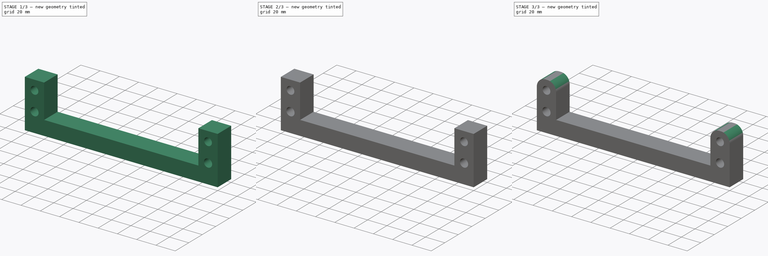
[diagram: build sequence overview — one tinted view per stage of 3, left to right]
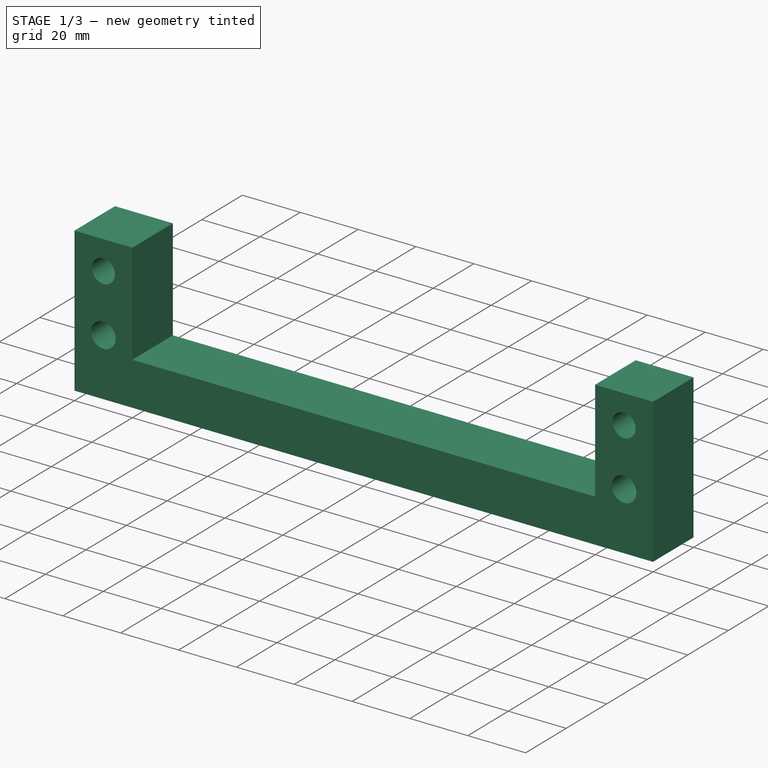
[diagram: stage 1 of 3 — iso view after this stage's code; geometry added in this stage tinted green]
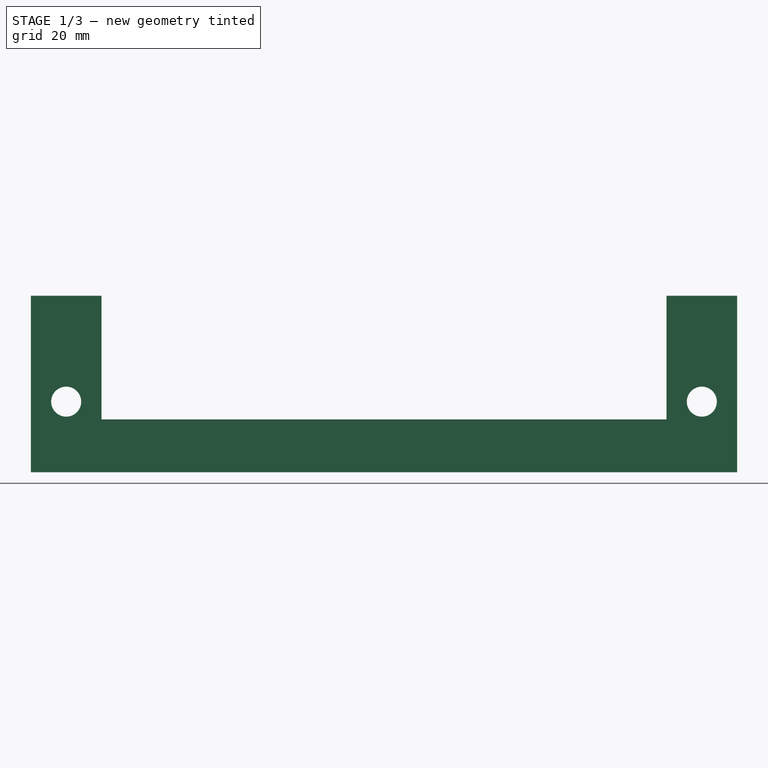
[diagram: stage 1 of 3 — front view after this stage's code; geometry added in this stage tinted green]
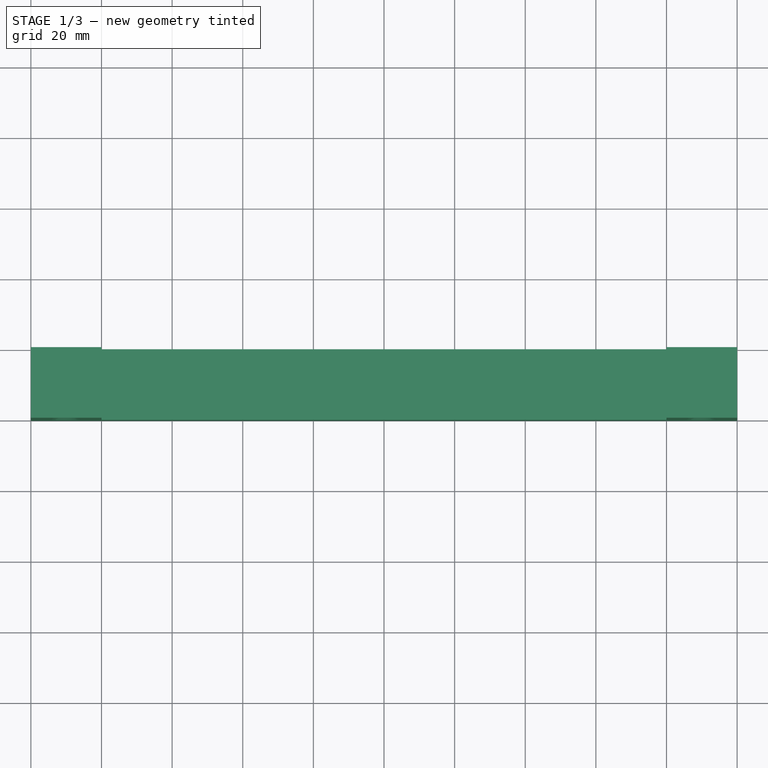
[diagram: stage 1 of 3 — top view after this stage's code; geometry added in this stage tinted green]
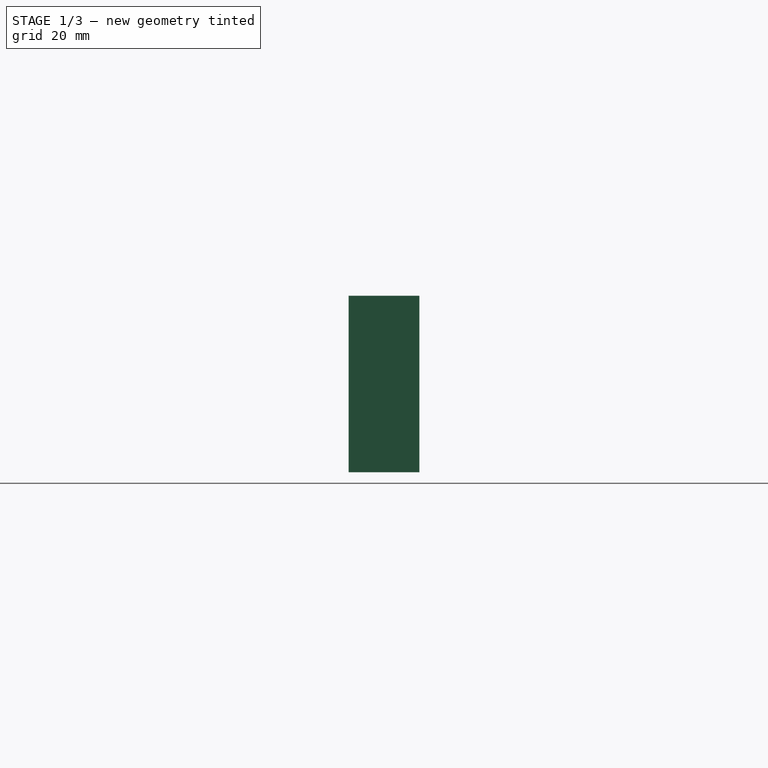
[diagram: stage 1 of 3 — right view after this stage's code; geometry added in this stage tinted green]
FCSTD DOCUMENT  (FreeCAD 2023.521R14555 (Git shallow))
Label: Y_Back_Base
License: All rights reserved
objects: Sketcher::SketchObject×4, PartDesign::Pocket×3, PartDesign::CoordinateSystem×3, PartDesign::Pad×1, PartDesign::Fillet×1, PartDesign::Body×1, App::Part×1
note: 27 computed .brp shape members not serialized (recipe doc carries the construction recipe); baked Part::Feature solids carry a one-line shape summary decoded from their .brp

FEATURE [Sketcher::SketchObject] Sketch
  ArcFitTolerance = 1e-06
  AttachmentSupport = -> [XZ_Plane]
  ExternalBSplineMaxDegree = 5
  ExternalBSplineTolerance = 0.0001
  FullyConstrained = false
  InternalTolerance = 1e-06
  InvalidShape = false
  MakeInternals = false
  MapMode = 5
  Placement = pos=(0,0,0) rot=(1,0,0;1.5708rad)
  Support = -> [XZ_Plane]
  TreeRank = 11
  ValidateShape = false
  sketch-geometry (12):
    g0: Circle CenterX=-90 CenterY=20 CenterZ=0 NormalX=0 NormalY=0 NormalZ=1 AngleXU=0 Radius=4.25
    g1: Circle CenterX=90 CenterY=20 CenterZ=0 NormalX=0 NormalY=0 NormalZ=1 AngleXU=0 Radius=4.25
    g2: LineSegment StartX=-100 StartY=0 StartZ=0 EndX=-100 EndY=50 EndZ=0
    g3: LineSegment StartX=100 StartY=50 StartZ=0 EndX=100 EndY=0 EndZ=0
    g4: LineSegment StartX=100 StartY=0 StartZ=0 EndX=-100 EndY=0 EndZ=0
    g5: GeomPoint [constr] X=0 Y=25 Z=0
    g6: LineSegment StartX=-100 StartY=50 StartZ=0 EndX=-80 EndY=50 EndZ=0
    g7: LineSegment StartX=-80 StartY=50 StartZ=0 EndX=-80 EndY=15 EndZ=0
    g8: LineSegment StartX=-80 StartY=15 StartZ=0 EndX=80 EndY=15 EndZ=0
    g9: LineSegment StartX=80 StartY=15 StartZ=0 EndX=80 EndY=50 EndZ=0
    g10: LineSegment StartX=80 StartY=50 StartZ=0 EndX=100 EndY=50 EndZ=0
    g11: GeomPoint [constr] X=-90 Y=50 Z=0
  constraints (30):
    c: Coincident(g3,g4)
    c: Coincident(g4,g2)
    c: Horizontal(g4)
    c: Vertical(g2)
    c: Vertical(g3)
    c: Symmetric(g3,g2,g5)
    c: Symmetric(g1,g0,g-2)
    c: PointOnObject(g-1,g4)
    c: Vertical(g5,g-1)
    c: DistanceX(g0,g1) = 180
    c: DistanceX(g4,g4) = 200
    c: DistanceY(g-1,g0) = 20
    c: DistanceY(g2,g2) = 50
    c: Equal(g0,g1)
    c: Diameter(g0) = 8.5
    c: Coincident(g6,g2)
    c: Horizontal(g6)
    c: Vertical(g7)
    c: Coincident(g8,g7)
    c: Coincident(g9,g8)
    c: Vertical(g9)
    c: Coincident(g10,g9)
    c: Coincident(g10,g3)
    c: Horizontal(g10)
    c: Horizontal(g9,g6)
    c: Coincident(g6,g7)
    c: Symmetric(g7,g8,g-2)
    c: Vertical(g11,g0)
    c: DistanceY(g2,g7) = 15
    c: DistanceX(g8,g8) = 160
FEATURE [PartDesign::Pad] Pad
  AddSubType = 0
  AlongSketchNormal = false
  AutoTaperInnerAngle = true
  CheckUpToFaceLimits = false
  ClaimChildren = false
  Direction = (0,-1,2e-16)
  Fit = 0
  FitJoin = 0
  InnerFit = 0
  InnerFitJoin = 0
  InvalidShape = false
  Length = 20
  Length2 = 10
  Linearize = true
  NewSolid = false
  Profile = -> Sketch
  ReferenceAxis = -> Sketch [N_Axis]
  Suppress = false
  TaperInnerAngle = 0
  TaperInnerAngleRev = 0
  TreeRank = 12
  Type = 0
  ValidateShape = true
  _ProfileBasedVersion = 1
FEATURE [Sketcher::SketchObject] Sketch001
  ArcFitTolerance = 1e-06
  AttachmentSupport = -> [Pad]
  ExternalBSplineMaxDegree = 5
  ExternalBSplineTolerance = 0.0001
  ExternalGeometry = -> [Pad]
  FullyConstrained = true
  InternalTolerance = 1e-06
  InvalidShape = false
  MakeInternals = false
  MapMode = 5
  Placement = pos=(0,-20,4.4e-15) rot=(1,0,0;1.5708rad)
  Support = -> [Pad]
  TreeRank = 13
  ValidateShape = false
  sketch-geometry (2):
    g0: Circle CenterX=-90 CenterY=40 CenterZ=0 NormalX=0 NormalY=0 NormalZ=1 AngleXU=0 Radius=4
    g1: Circle CenterX=90 CenterY=40 CenterZ=0 NormalX=0 NormalY=0 NormalZ=1 AngleXU=0 Radius=4
  constraints (5):
    c: Equal(g1,g0)
    c: Vertical(g0,g-3)
    c: Diameter(g0) = 8
    c: Symmetric(g0,g1,g-2)
    c: DistanceY(g-1,g0) = 40
FEATURE [PartDesign::Pocket] Pocket
  AddSubType = 1
  AlongSketchNormal = false
  AutoTaperInnerAngle = true
  BaseFeature = -> Pad
  CheckUpToFaceLimits = true
  ClaimChildren = false
  Direction = (0,1,-2e-16)
  Fit = 0
  FitJoin = 0
  InnerFit = 0
  InnerFitJoin = 0
  InvalidShape = false
  Length = 0
  Length2 = 10
  Linearize = true
  NewSolid = false
  Offset = 5
  Profile = -> Sketch001
  ReferenceAxis = -> Sketch001 [N_Axis]
  Suppress = false
  TaperInnerAngle = 0
  TaperInnerAngleRev = 0
  TreeRank = 14
  Type = 3
  UpToFace = -> Pad [Face11]
  ValidateShape = true
  _ProfileBasedVersion = 1
  _Version = 1
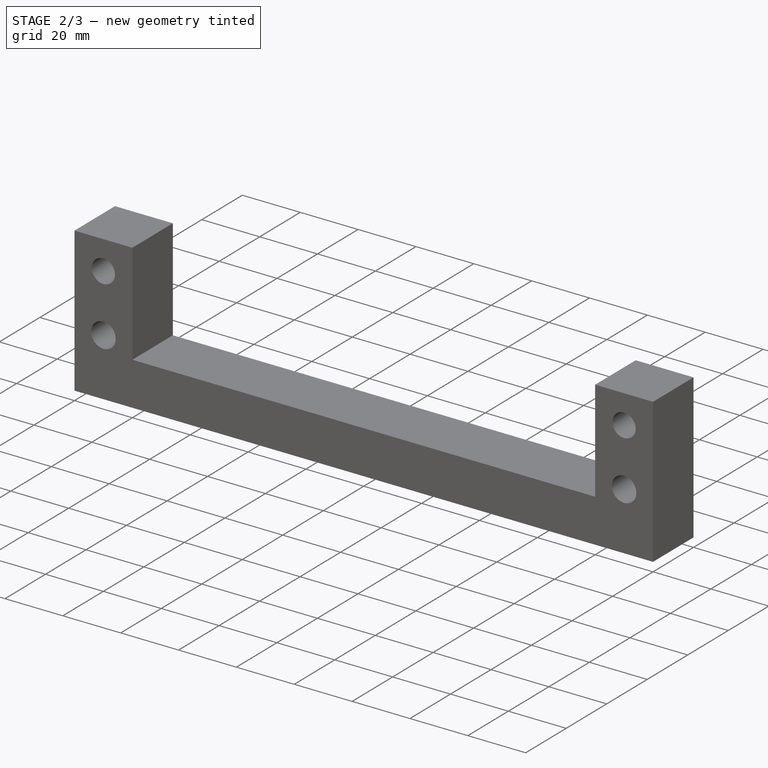
[diagram: stage 2 of 3 — iso view after this stage's code; geometry added in this stage tinted green]
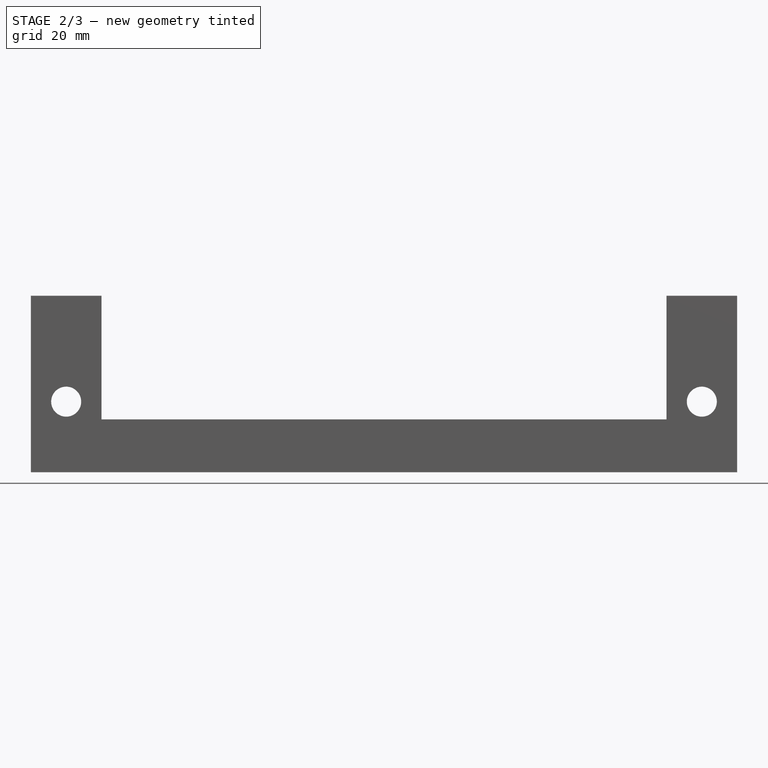
[diagram: stage 2 of 3 — front view after this stage's code; geometry added in this stage tinted green]
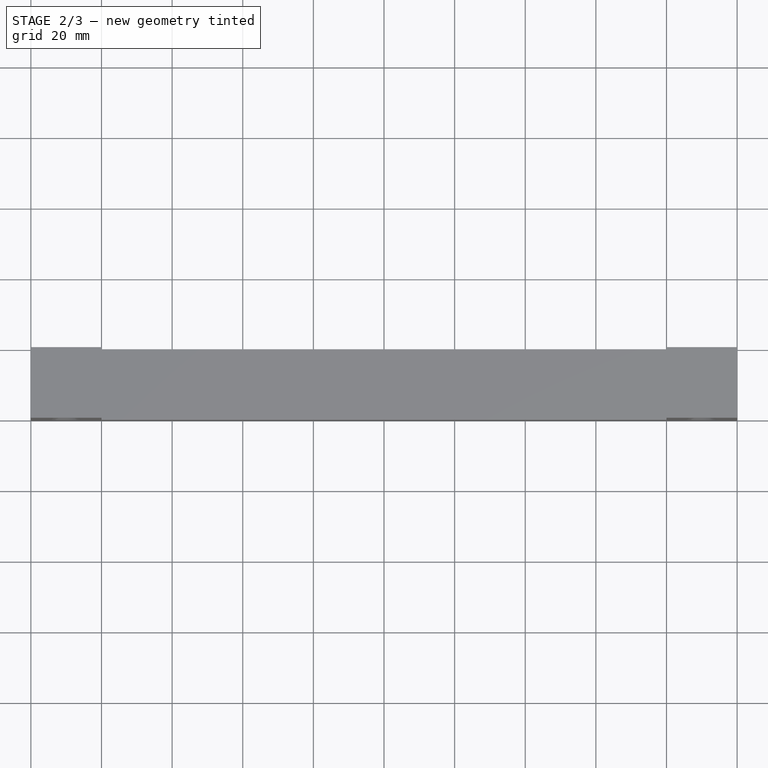
[diagram: stage 2 of 3 — top view after this stage's code; geometry added in this stage tinted green]
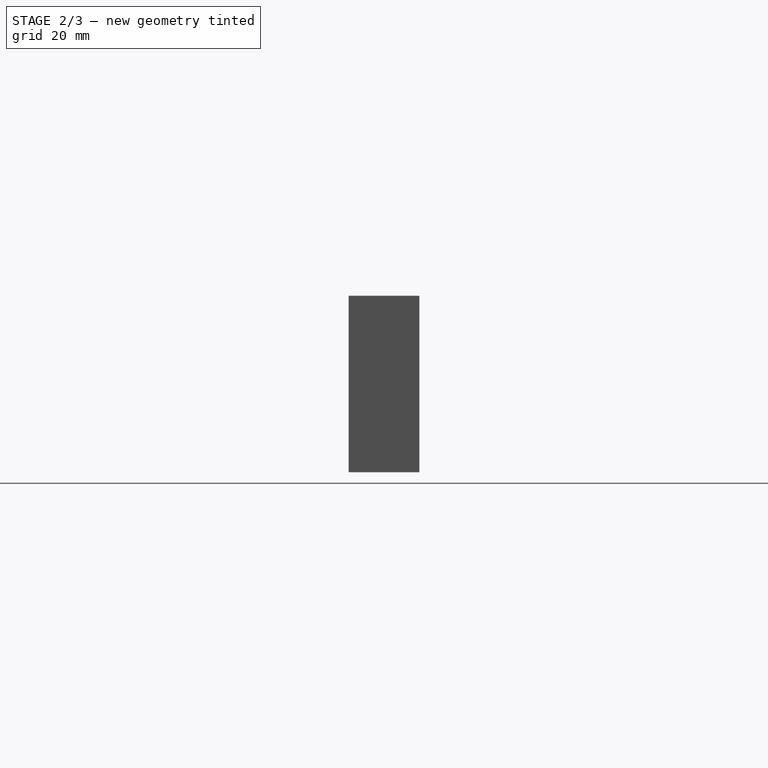
[diagram: stage 2 of 3 — right view after this stage's code; geometry added in this stage tinted green]
FEATURE [Sketcher::SketchObject] Sketch003
  ArcFitTolerance = 1e-06
  AttachmentSupport = -> [XZ_Plane001]
  ExternalBSplineMaxDegree = 5
  ExternalBSplineTolerance = 0.0001
  FullyConstrained = true
  InternalTolerance = 1e-06
  InvalidShape = false
  MakeInternals = false
  MapMode = 2
  Placement = pos=(0,0,0) rot=(1,0,0;1.5708rad)
  Support = -> [XZ_Plane001]
  TreeRank = 17
  ValidateShape = false
  sketch-geometry (3):
    g0: Circle CenterX=0 CenterY=8 CenterZ=0 NormalX=0 NormalY=0 NormalZ=1 AngleXU=0 Radius=2.65
    g1: Circle CenterX=20 CenterY=8 CenterZ=0 NormalX=0 NormalY=0 NormalZ=1 AngleXU=0 Radius=2.65
    g2: Circle CenterX=-20 CenterY=8 CenterZ=0 NormalX=0 NormalY=0 NormalZ=1 AngleXU=0 Radius=2.65
  constraints (8):
    c: Symmetric(g1,g2,g0)
    c: Vertical(g0,g-1)
    c: Horizontal(g1,g0)
    c: DistanceX(g0,g1) = 20
    c: Diameter(g1) = 5.3
    c: Equal(g0,g2)
    c: Equal(g0,g1)
    c: DistanceY(g-1,g0) = 8
FEATURE [PartDesign::Pocket] Pocket002
  AddSubType = 1
  AlongSketchNormal = false
  AutoTaperInnerAngle = true
  BaseFeature = -> Pocket
  CheckUpToFaceLimits = true
  ClaimChildren = false
  Direction = (0,1,-2e-16)
  Fit = 0
  FitJoin = 0
  InnerFit = 0
  InnerFitJoin = 0
  InvalidShape = false
  Length = 13
  Length2 = 10
  Linearize = true
  NewSolid = false
  Profile = -> Sketch003
  ReferenceAxis = -> Sketch003 [N_Axis]
  Reversed = true
  Suppress = false
  TaperInnerAngle = 0
  TaperInnerAngleRev = 0
  TreeRank = 18
  Type = 0
  ValidateShape = true
  _ProfileBasedVersion = 1
  _Version = 1
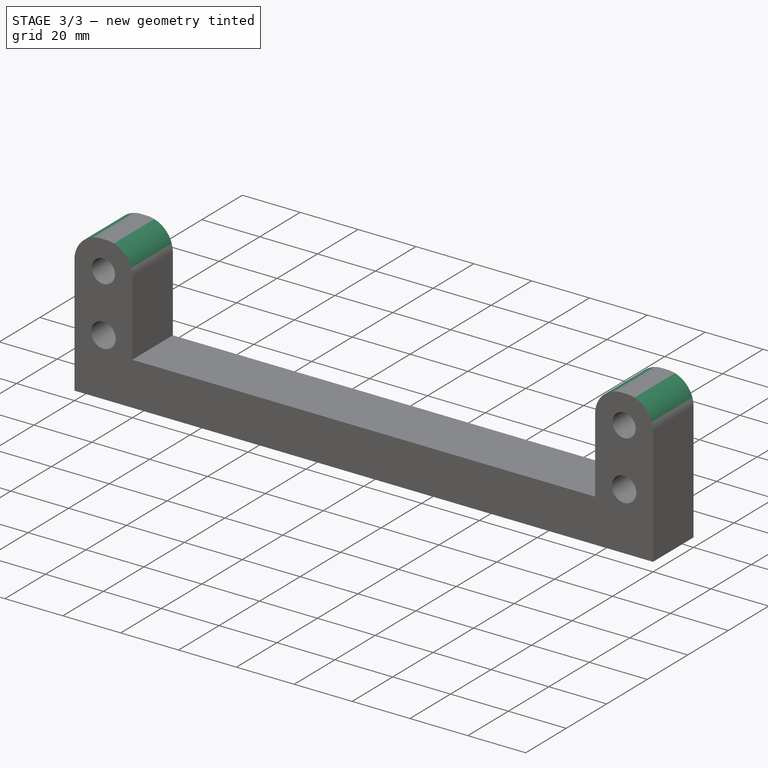
[diagram: stage 3 of 3 — iso view after this stage's code; geometry added in this stage tinted green]
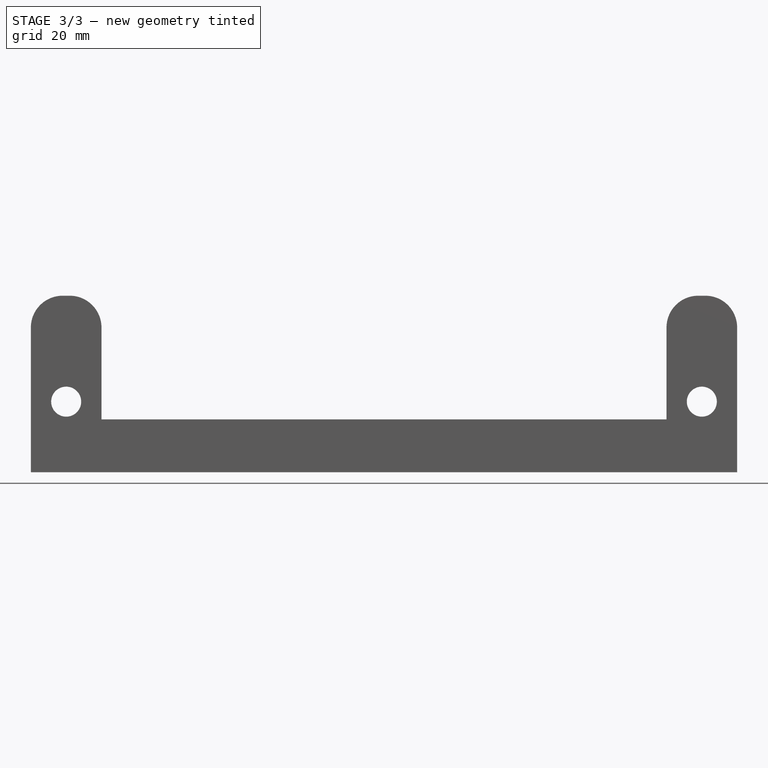
[diagram: stage 3 of 3 — front view after this stage's code; geometry added in this stage tinted green]
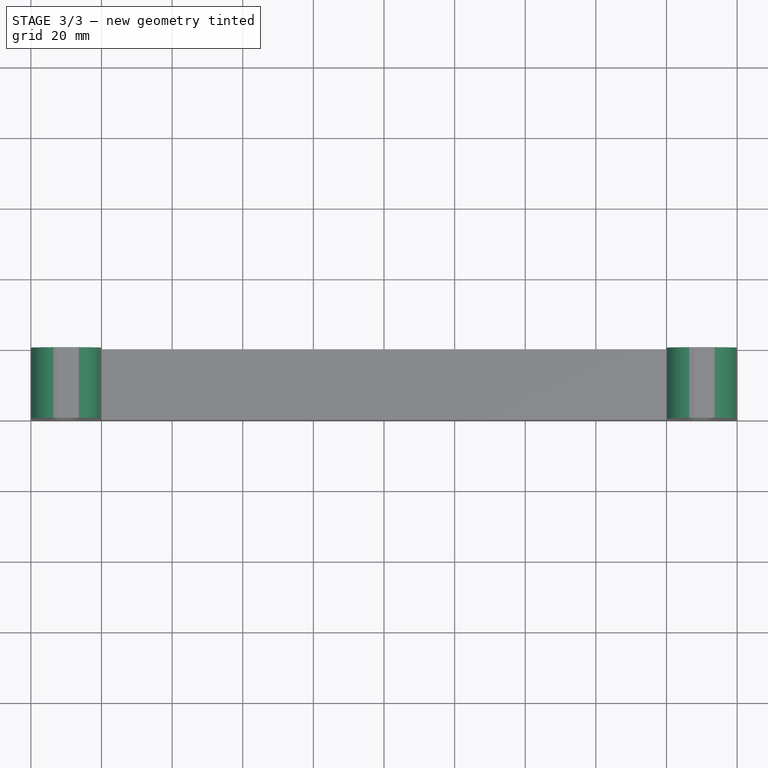
[diagram: stage 3 of 3 — top view after this stage's code; geometry added in this stage tinted green]
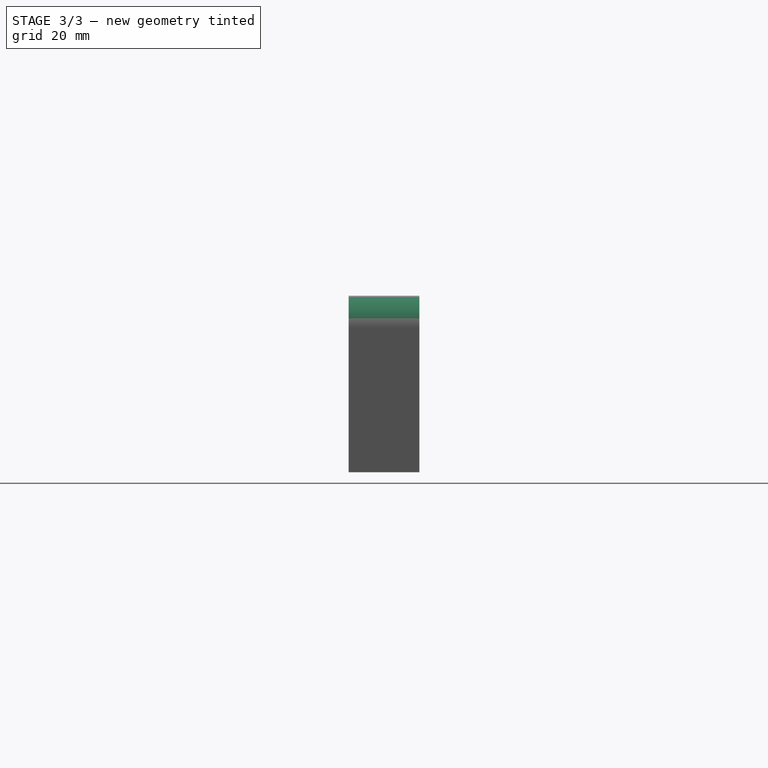
[diagram: stage 3 of 3 — right view after this stage's code; geometry added in this stage tinted green]
FEATURE [PartDesign::Fillet] Fillet
  AddSubType = 0
  Base = -> Pocket002 [Edge2,Edge8,Edge32,Edge30]
  BaseFeature = -> Pocket002
  InvalidShape = false
  NewSolid = false
  Radius = 9
  SupportTransform = false
  Suppress = false
  TreeRank = 19
  UseAllEdges = false
  ValidateShape = true
FEATURE [PartDesign::CoordinateSystem] Local_CS  label="Rod0"
  AttacherType = Attacher::AttachEngine3D
  AttachmentSupport = -> [Fillet]
  InvalidShape = false
  MapMode = 11
  Placement = pos=(-90,-5,40) rot=(0.57735,-0.57735,0.57735;2.0944rad)
  Support = -> [Fillet]
  TreeRank = 20
  ValidateShape = false
FEATURE [PartDesign::CoordinateSystem] Local_CS001  label="Rod1"
  AttacherType = Attacher::AttachEngine3D
  AttachmentSupport = -> [Fillet]
  InvalidShape = false
  MapMode = 11
  Placement = pos=(90,-5,40) rot=(0.57735,-0.57735,0.57735;2.0944rad)
  Support = -> [Fillet]
  TreeRank = 21
  ValidateShape = false
FEATURE [PartDesign::CoordinateSystem] LCS_0
  AttacherType = Attacher::AttachEngine3D
  AttachmentSupport = -> [X_Axis001]
  InvalidShape = false
  MapMode = 2
  Support = -> [X_Axis001]
  TreeRank = 26
  ValidateShape = false
FEATURE [Sketcher::SketchObject] Sketch005
  ArcFitTolerance = 1e-06
  AttachmentSupport = -> [Fillet]
  ExternalBSplineMaxDegree = 5
  ExternalBSplineTolerance = 0.0001
  ExternalGeometry = -> [Fillet]
  FullyConstrained = true
  InternalTolerance = 1e-06
  InvalidShape = false
  MakeInternals = false
  MapMode = 5
  Placement = pos=(-100,0,0) rot=(0.57735,-0.57735,-0.57735;2.0944rad)
  Support = -> [Fillet]
  TreeRank = 36
  ValidateShape = false
  sketch-geometry (4):
    g0: Circle CenterX=5 CenterY=28 CenterZ=0 NormalX=0 NormalY=0 NormalZ=1 AngleXU=0 Radius=2.85
    g1: Circle CenterX=15 CenterY=28 CenterZ=0 NormalX=0 NormalY=0 NormalZ=1 AngleXU=0 Radius=2.85
    g2: GeomPoint [constr] X=10 Y=28 Z=0
    g3: GeomPoint [constr] X=10 Y=2.2e-15 Z=0
  constraints (8):
    c: DistanceY(g-1,g0) = 28
    c: Diameter(g0) = 5.7
    c: Equal(g0,g1)
    c: Symmetric(g-3,g-3,g3)
    c: Vertical(g3,g2)
    c: Symmetric(g0,g1,g2)
    c: Horizontal(g1,g0)
    c: DistanceX(g0,g1) = 10
FEATURE [PartDesign::Pocket] Pocket003
  AddSubType = 1
  AlongSketchNormal = false
  AutoTaperInnerAngle = true
  BaseFeature = -> Fillet
  CheckUpToFaceLimits = true
  ClaimChildren = false
  Direction = (1,0,0)
  Fit = 0
  FitJoin = 0
  InnerFit = 0
  InnerFitJoin = 0
  InvalidShape = false
  Length = 10
  Length2 = 10
  Linearize = true
  NewSolid = false
  Profile = -> Sketch005
  ReferenceAxis = -> Sketch005 [N_Axis]
  Suppress = false
  TaperInnerAngle = 0
  TaperInnerAngleRev = 0
  TreeRank = 37
  Type = 0
  ValidateShape = true
  _ProfileBasedVersion = 1
  _Version = 1
FEATURE [PartDesign::Body] Body  label="Front_Base"
  AutoGroupSolids = false
  ClaimAllChildren = false
  ExportMode = 0
  Group = -> [Sketch,Pad,Sketch001,Pocket,Sketch003,Pocket002,Fillet,Sketch005,Pocket003]
  InvalidShape = false
  Origin = -> Origin
  Tip = -> Pocket003
  TreeRank = 10
  ValidateShape = false
  _ExportChildren = -> [Pad,Pocket,Pocket002,Fillet,Pocket003]
  _GroupVersion = 1
FEATURE [App::Part] Front_base  label="Back_base"
  ClaimAllChildren = false
  ExportMode = 1
  Group = -> [LCS_0,Body,Local_CS,Local_CS001]
  Origin = -> Origin001
  TreeRank = 34
  _ExportChildren = -> [LCS_0,Body,Local_CS,Local_CS001]
  _GroupVersion = 1
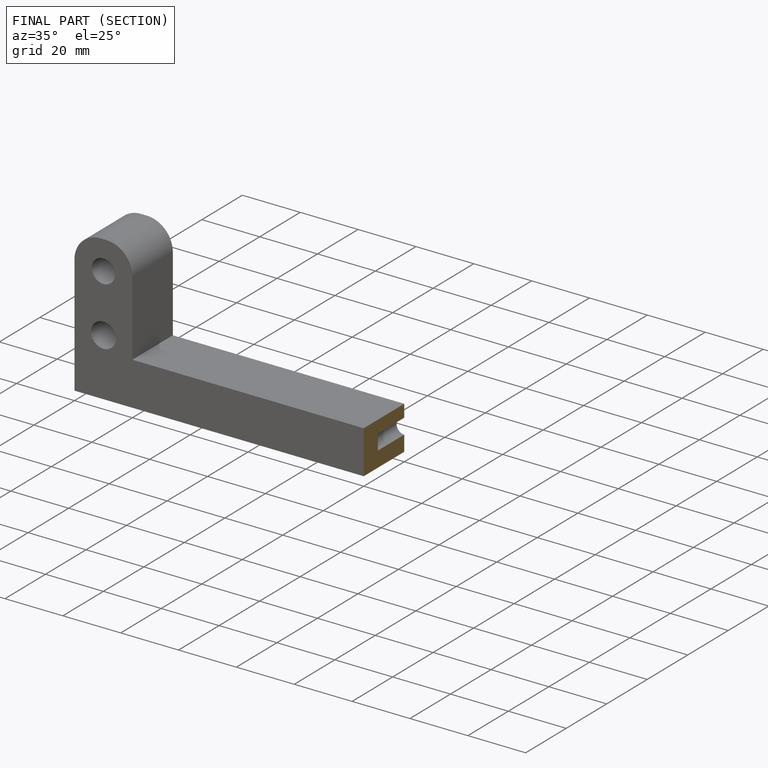
[diagram: finished part — half-section view (interior)]
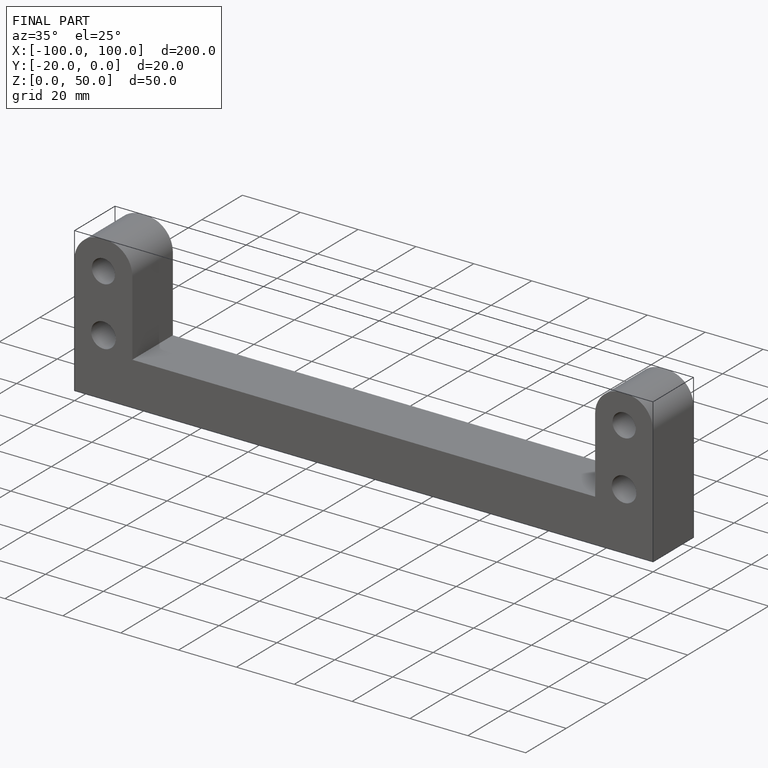
[diagram: finished part — iso view with bounding-box wireframe]
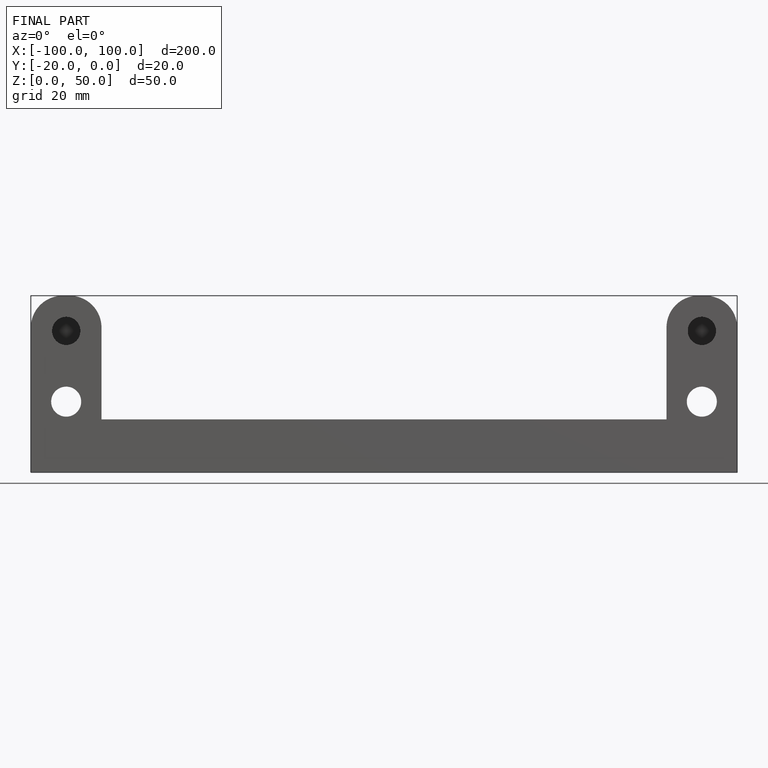
[diagram: finished part — front view with bounding-box wireframe]
